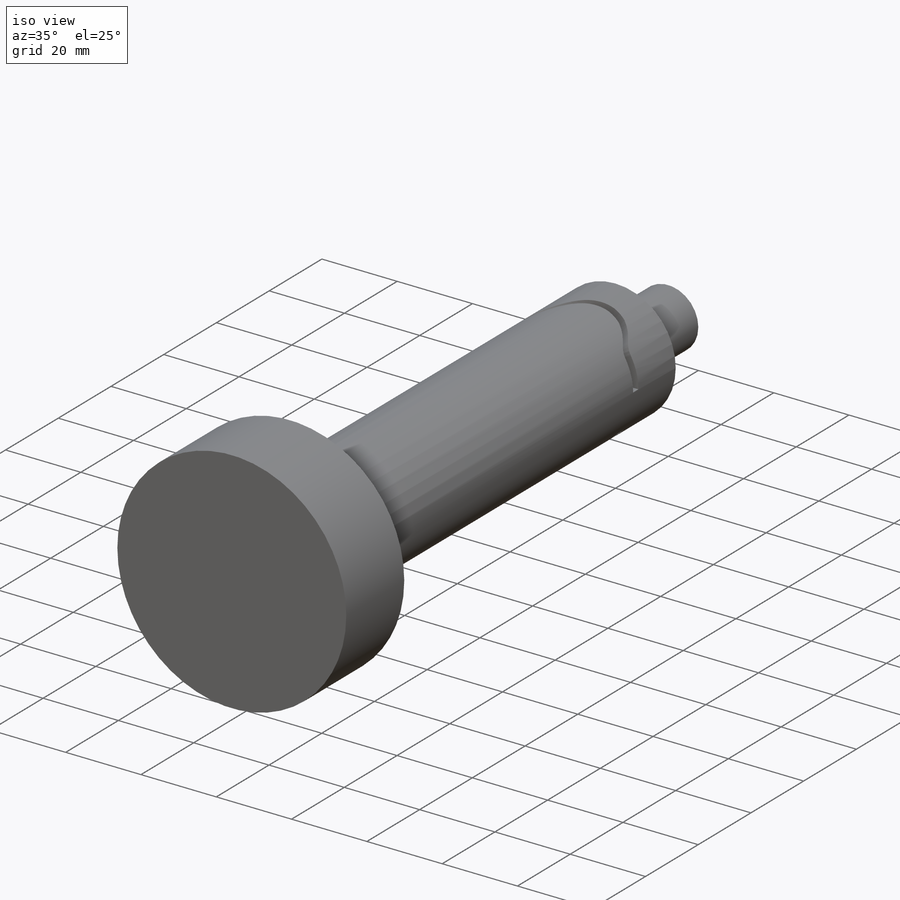
[diagram: iso view]
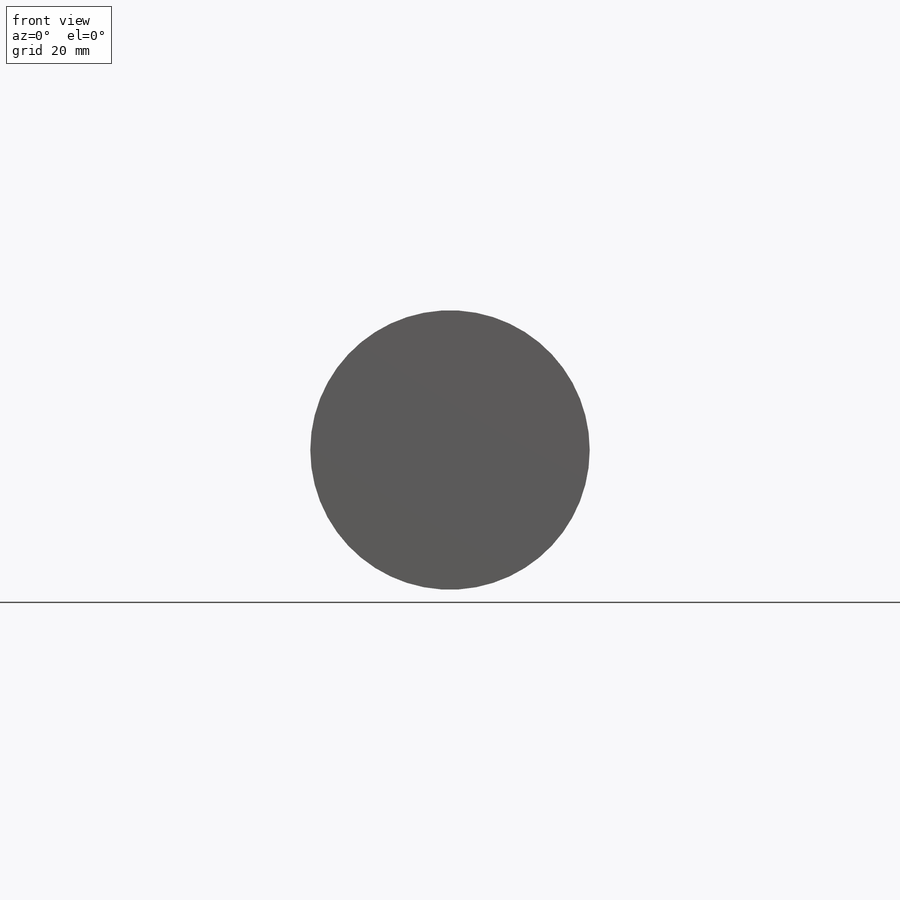
[diagram: front view]
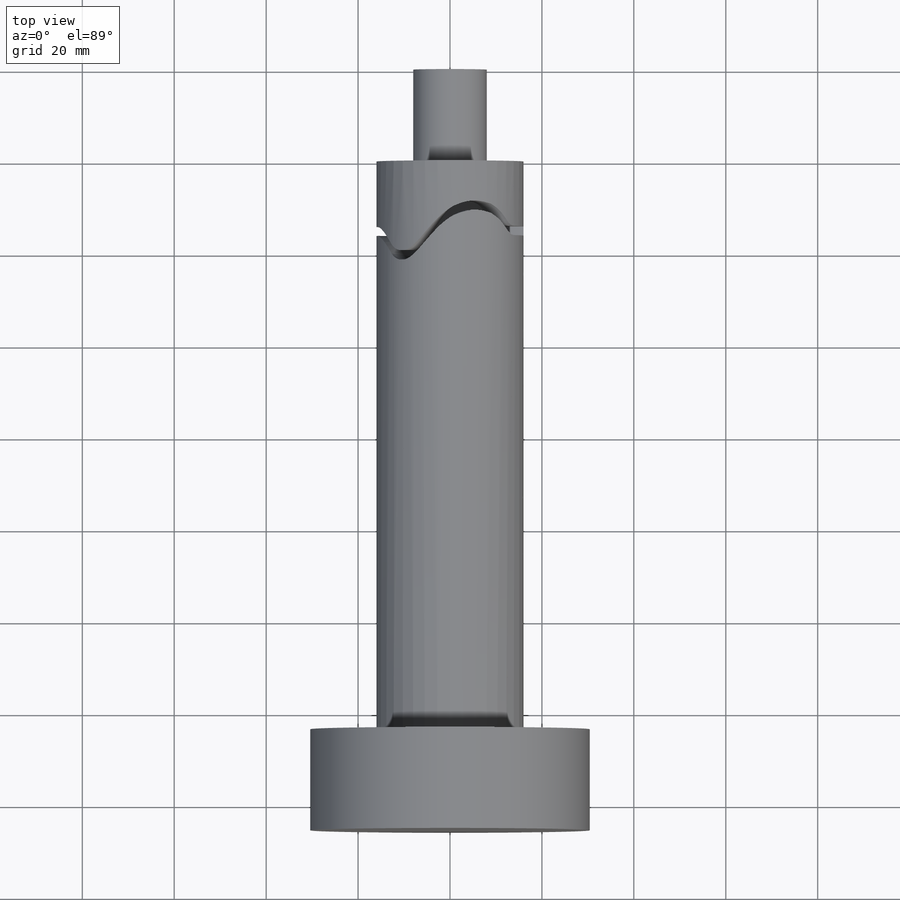
[diagram: top view]
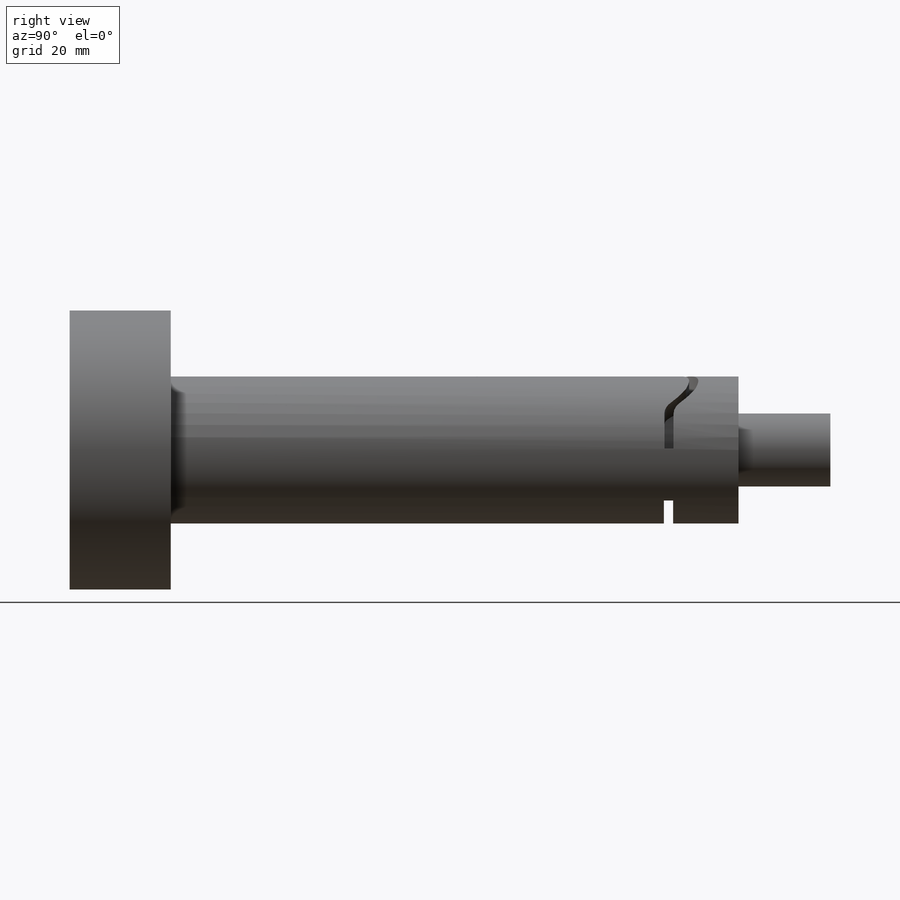
[diagram: right view]
SOLIDWORKS PART (.sldprt)
format: sldprt  version: not decoded by parser v0  size: 537,088 bytes
history: native  units: mm
features: revolve x7, sketch x5, plane x4, material x1, sweep x1 + 2 further entries (+9 scaffold rows collapsed)
feature tree (29):
  scaffold x9  (default folders/planes/origin — collapsed)
  material  "Material <nicht festgelegt>"
  plane  "Ebene vorne"
  plane  "Ebene oben"
  plane  "Ebene rechts"
  "Kurve2"
  "Kurve3"
  sketch  "Skizze1"  dims[D1=20.0mm D2=16.0mm D3=32.0mm D4=60.8mm D5=22.0mm D6=123.535mm]
  revolve  "Rotation1"  Angle=360deg flange_len_value=0 Associativity_IDs=0deg
  revolve  "f5bbd91e-e62c-41b2-ab66-4bd4433ec3a8"  Angle=0deg Associativity_IDs=0deg flange_len_value=0
  revolve  "3667031d-cf50-483e-9f62-9b8ab0e49822"  Angle=0deg Associativity_IDs=0deg flange_len_value=0
  revolve  "0c5e57b0-4614-41dd-b920-be2e968327ee"  Angle=0deg Associativity_IDs=0deg flange_len_value=0
  revolve  "da9ee6d6-26ed-43b7-a3d8-2b35c9732ae3"  Angle=0deg Associativity_IDs=0deg flange_len_value=0
  revolve  "16a0b5b4-69c2-444a-9316-7ee1e82411fa"  Angle=0deg Associativity_IDs=0deg flange_len_value=0
  revolve  "eebf653c-ad96-4c8a-b0e9-a9e315a974e5"  Angle=0deg Associativity_IDs=0deg flange_len_value=0
  sketch  "3D-Skizze2"
  sketch  "3D-Skizze3"
  sketch  "3D-Skizze4"
  plane  "Ebene1"
  sketch  "Skizze2"  dims[c1.D1=~4.993075mm c1.D2=~4.336954mm c2.D1=2.0mm c2.D2=5.0mm]
  sweep  "Schnitt-Austragung1"
decode coverage: 9 of 13 modeling features carry decoded parameters; 2 rows unclassified (native names shown)
note: ~ marks probable driven/reference dimensions
note: suppression state not decoded; provenance and decode notes live in map.json
